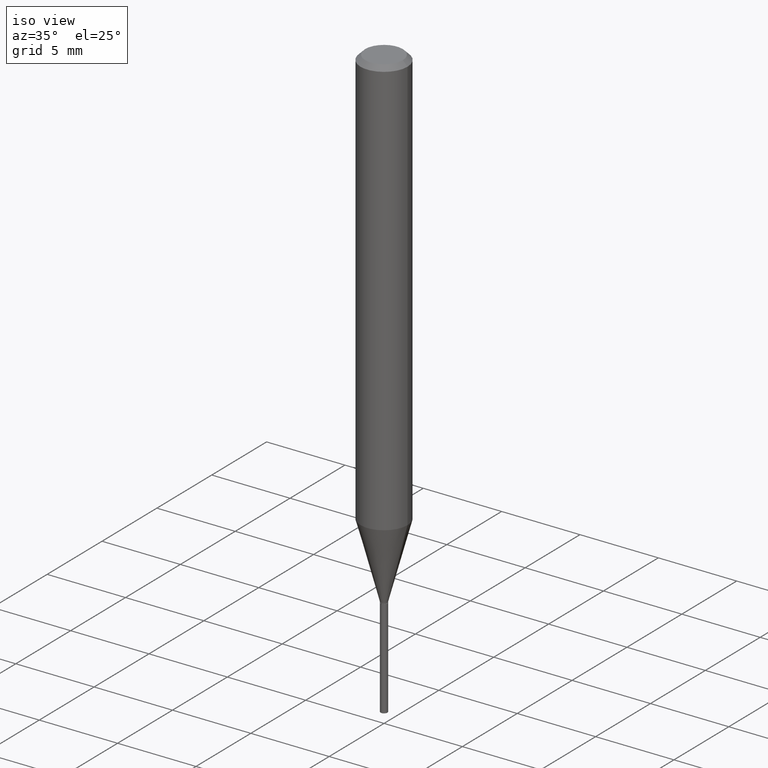
[diagram: clean part render]
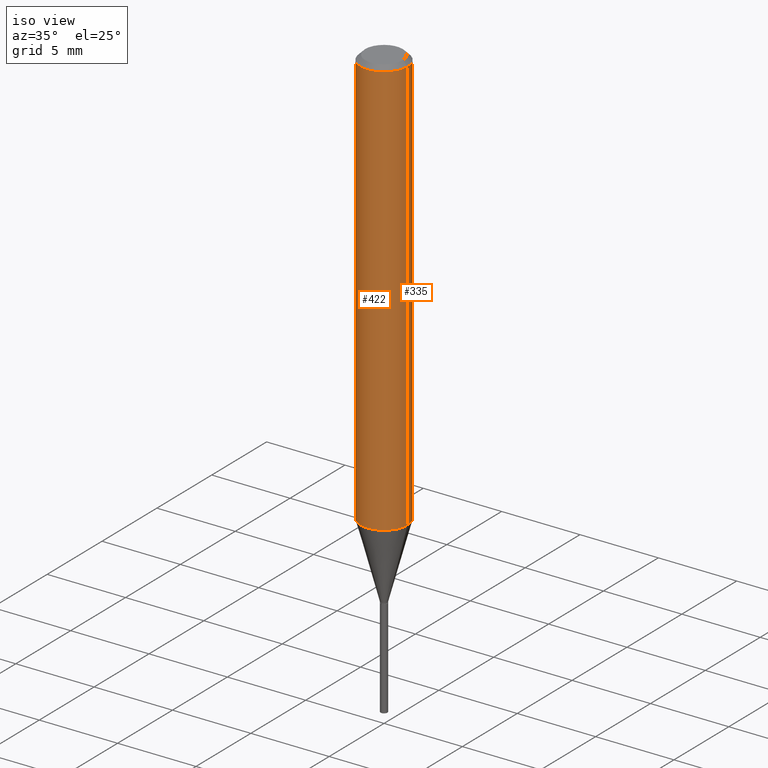
[diagram: same view with one multi-face feature highlighted, each face labeled with its STEP entity id]
A machine part, iso view. The highlighted faces form ONE feature: a constant-radius fillet chain: 2 tangent blend faces with common blend radius 1.4999 mm. The faces share edges in the B-rep.
Their STEP definitions:
[1] entity #422 (Cylinder):
#34 = FACE_OUTER_BOUND ( 'NONE', #209, .T. ) ;
#41 = DIRECTION ( 'NONE',  ( -2.445468806185136597E-29, 3.491481338843145583E-15, 1.000000000000000000 ) ) ;
#58 = ORIENTED_EDGE ( 'NONE', *, *, #131, .T. ) ;
#78 = DIRECTION ( 'NONE',  ( -2.445468806185136877E-29, 3.491481338843145188E-15, 1.000000000000000000 ) ) ;
#81 = CARTESIAN_POINT ( 'NONE',  ( 0.05905000000000006771, -4.123439461173745257E-16, 2.879382386107503723E-30 ) ) ;
#111 = EDGE_CURVE ( 'NONE', #435, #490, #332, .T. ) ;
#115 = EDGE_CURVE ( 'NONE', #334, #435, #303, .T. ) ;
#118 = AXIS2_PLACEMENT_3D ( 'NONE', #285, #436, #385 ) ;
#119 = DIRECTION ( 'NONE',  ( 1.000000000000000000, -6.982962677686266711E-15, 4.876176775795936353E-29 ) ) ;
#129 = DIRECTION ( 'NONE',  ( -2.445468806185136597E-29, 3.491481338843145583E-15, 1.000000000000000000 ) ) ;
#131 = EDGE_CURVE ( 'NONE', #141, #490, #347, .T. ) ;
#141 = VERTEX_POINT ( 'NONE', #270 ) ;
#155 = CARTESIAN_POINT ( 'NONE',  ( -0.05905000000000006771, 4.195754854663396409E-16, -2.904631170795525045E-30 ) ) ;
#172 = ORIENTED_EDGE ( 'NONE', *, *, #115, .F. ) ;
#183 = CARTESIAN_POINT ( 'NONE',  ( -0.05904999999999999832, -1.438884567512250013E-15, -0.01181000000000007218 ) ) ;
#189 = CYLINDRICAL_SURFACE ( 'NONE', #286, 0.05905000000000006771 ) ;
#197 = VECTOR ( 'NONE', #78, 39.37007874015748143 ) ;
#209 = EDGE_LOOP ( 'NONE', ( #172, #360, #58, #259 ) ) ;
#228 = CIRCLE ( 'NONE', #118, 0.05905000000000013710 ) ;
#253 = CARTESIAN_POINT ( 'NONE',  ( 0.05904999999999999832, -4.535783407291118600E-16, -0.01181000000000007218 ) ) ;
#259 = ORIENTED_EDGE ( 'NONE', *, *, #111, .F. ) ;
#270 = CARTESIAN_POINT ( 'NONE',  ( 0.05905000000000013710, -4.088029657462817781E-15, -1.052758229137014556 ) ) ;
#285 = CARTESIAN_POINT ( 'NONE',  ( 2.574487409809273648E-29, -3.675685711345442861E-15, -1.052758229137014556 ) ) ;
#286 = AXIS2_PLACEMENT_3D ( 'NONE', #375, #41, #119 ) ;
#303 = LINE ( 'NONE', #155, #313 ) ;
#313 = VECTOR ( 'NONE', #346, 39.37007874015748143 ) ;
#332 = CIRCLE ( 'NONE', #402, 0.05904999999999999832 ) ;
#334 = VERTEX_POINT ( 'NONE', #364 ) ;
#341 = EDGE_CURVE ( 'NONE', #334, #141, #228, .T. ) ;
#346 = DIRECTION ( 'NONE',  ( -2.445468806185136877E-29, 3.491481338843145188E-15, 1.000000000000000000 ) ) ;
#347 = LINE ( 'NONE', #81, #197 ) ;
#360 = ORIENTED_EDGE ( 'NONE', *, *, #341, .T. ) ;
#364 = CARTESIAN_POINT ( 'NONE',  ( -0.05905000000000013710, -3.256110225879102579E-15, -1.052758229137014556 ) ) ;
#375 = CARTESIAN_POINT ( 'NONE',  ( 0.000000000000000000, 0.000000000000000000, 0.000000000000000000 ) ) ;
#378 = DIRECTION ( 'NONE',  ( 1.000000000000000000, -6.982962677686266711E-15, 0.000000000000000000 ) ) ;
#382 = CARTESIAN_POINT ( 'NONE',  ( 2.888098660104664204E-31, -4.123439461173780263E-17, -0.01181000000000007218 ) ) ;
#385 = DIRECTION ( 'NONE',  ( 1.000000000000000000, -6.982962677686264344E-15, 0.000000000000000000 ) ) ;
#402 = AXIS2_PLACEMENT_3D ( 'NONE', #382, #129, #378 ) ;
#422 = ADVANCED_FACE ( 'NONE', ( #34 ), #189, .T. ) ;
#435 = VERTEX_POINT ( 'NONE', #183 ) ;
#436 = DIRECTION ( 'NONE',  ( -2.445468806185136597E-29, 3.491481338843145583E-15, 1.000000000000000000 ) ) ;
#490 = VERTEX_POINT ( 'NONE', #253 ) ;
[2] entity #335 (Cylinder):
#32 = FACE_OUTER_BOUND ( 'NONE', #213, .T. ) ;
#35 = ORIENTED_EDGE ( 'NONE', *, *, #304, .T. ) ;
#61 = ORIENTED_EDGE ( 'NONE', *, *, #115, .T. ) ;
#78 = DIRECTION ( 'NONE',  ( -2.445468806185136877E-29, 3.491481338843145188E-15, 1.000000000000000000 ) ) ;
#81 = CARTESIAN_POINT ( 'NONE',  ( 0.05905000000000006771, -4.123439461173745257E-16, 2.879382386107503723E-30 ) ) ;
#91 = CIRCLE ( 'NONE', #343, 0.05904999999999999832 ) ;
#98 = CIRCLE ( 'NONE', #469, 0.05905000000000013710 ) ;
#115 = EDGE_CURVE ( 'NONE', #334, #435, #303, .T. ) ;
#131 = EDGE_CURVE ( 'NONE', #141, #490, #347, .T. ) ;
#139 = CARTESIAN_POINT ( 'NONE',  ( 2.574487409809273648E-29, -3.675685711345442861E-15, -1.052758229137014556 ) ) ;
#141 = VERTEX_POINT ( 'NONE', #270 ) ;
#155 = CARTESIAN_POINT ( 'NONE',  ( -0.05905000000000006771, 4.195754854663396409E-16, -2.904631170795525045E-30 ) ) ;
#181 = CARTESIAN_POINT ( 'NONE',  ( 0.000000000000000000, 0.000000000000000000, 0.000000000000000000 ) ) ;
#183 = CARTESIAN_POINT ( 'NONE',  ( -0.05904999999999999832, -1.438884567512250013E-15, -0.01181000000000007218 ) ) ;
#197 = VECTOR ( 'NONE', #78, 39.37007874015748143 ) ;
#213 = EDGE_LOOP ( 'NONE', ( #35, #61, #296, #215 ) ) ;
#215 = ORIENTED_EDGE ( 'NONE', *, *, #131, .F. ) ;
#216 = DIRECTION ( 'NONE',  ( -2.445468806185136597E-29, 3.491481338843145583E-15, 1.000000000000000000 ) ) ;
#245 = DIRECTION ( 'NONE',  ( 1.000000000000000000, -6.982962677686264344E-15, 0.000000000000000000 ) ) ;
#251 = CARTESIAN_POINT ( 'NONE',  ( 2.888098660104664204E-31, -4.123439461173780263E-17, -0.01181000000000007218 ) ) ;
#253 = CARTESIAN_POINT ( 'NONE',  ( 0.05904999999999999832, -4.535783407291118600E-16, -0.01181000000000007218 ) ) ;
#254 = AXIS2_PLACEMENT_3D ( 'NONE', #181, #325, #350 ) ;
#270 = CARTESIAN_POINT ( 'NONE',  ( 0.05905000000000013710, -4.088029657462817781E-15, -1.052758229137014556 ) ) ;
#296 = ORIENTED_EDGE ( 'NONE', *, *, #400, .F. ) ;
#303 = LINE ( 'NONE', #155, #313 ) ;
#304 = EDGE_CURVE ( 'NONE', #141, #334, #98, .T. ) ;
#313 = VECTOR ( 'NONE', #346, 39.37007874015748143 ) ;
#325 = DIRECTION ( 'NONE',  ( -2.445468806185136597E-29, 3.491481338843145583E-15, 1.000000000000000000 ) ) ;
#334 = VERTEX_POINT ( 'NONE', #364 ) ;
#335 = ADVANCED_FACE ( 'NONE', ( #32 ), #395, .T. ) ;
#336 = DIRECTION ( 'NONE',  ( 1.000000000000000000, -6.982962677686266711E-15, 0.000000000000000000 ) ) ;
#343 = AXIS2_PLACEMENT_3D ( 'NONE', #251, #377, #336 ) ;
#346 = DIRECTION ( 'NONE',  ( -2.445468806185136877E-29, 3.491481338843145188E-15, 1.000000000000000000 ) ) ;
#347 = LINE ( 'NONE', #81, #197 ) ;
#350 = DIRECTION ( 'NONE',  ( 1.000000000000000000, -6.982962677686266711E-15, 4.876176775795936353E-29 ) ) ;
#364 = CARTESIAN_POINT ( 'NONE',  ( -0.05905000000000013710, -3.256110225879102579E-15, -1.052758229137014556 ) ) ;
#377 = DIRECTION ( 'NONE',  ( -2.445468806185136597E-29, 3.491481338843145583E-15, 1.000000000000000000 ) ) ;
#395 = CYLINDRICAL_SURFACE ( 'NONE', #254, 0.05905000000000006771 ) ;
#400 = EDGE_CURVE ( 'NONE', #490, #435, #91, .T. ) ;
#435 = VERTEX_POINT ( 'NONE', #183 ) ;
#469 = AXIS2_PLACEMENT_3D ( 'NONE', #139, #216, #245 ) ;
#490 = VERTEX_POINT ( 'NONE', #253 ) ;